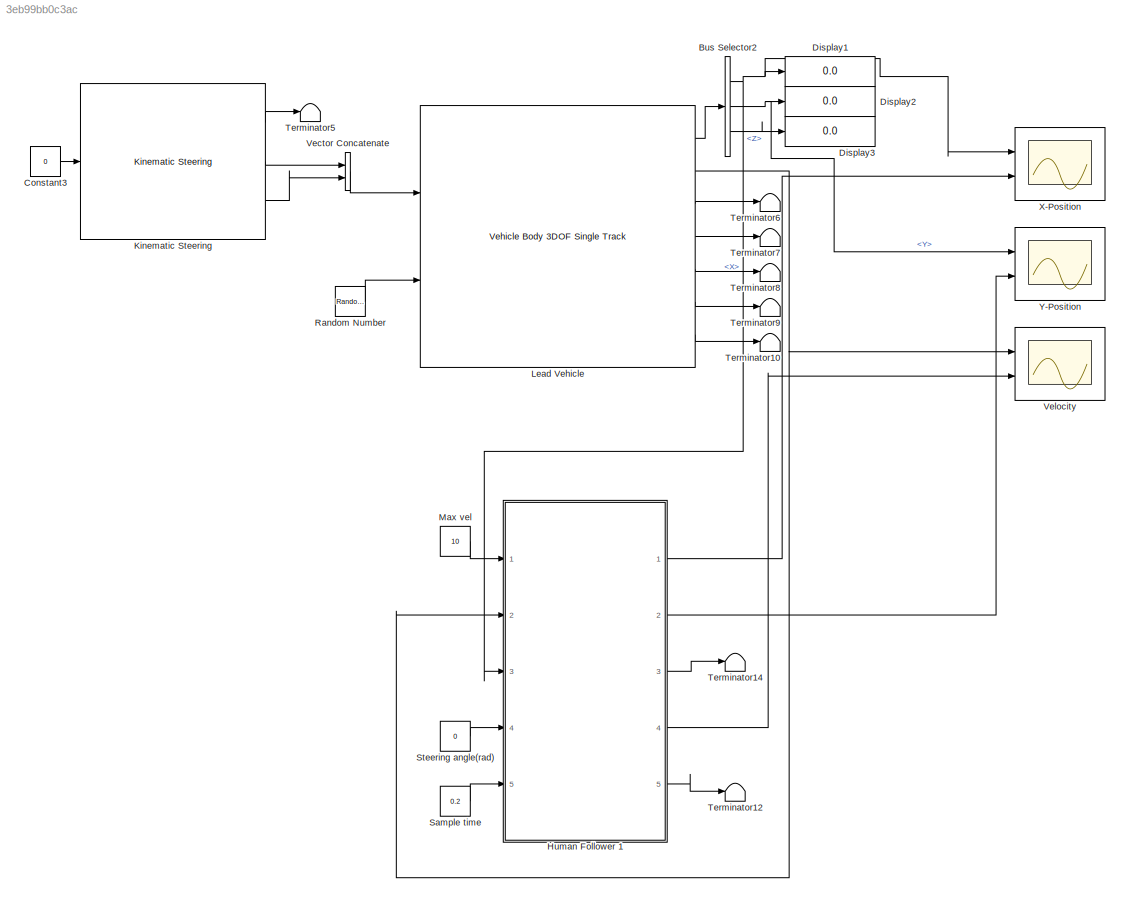
MODEL slx_3eb99bb0c3ac
KIND model
CONFIG AbsTol = auto
CONFIG EnableMultiTasking = off
CONFIG FixedStep = auto
CONFIG MaxStep = auto
CONFIG MinStep = auto
CONFIG RelTol = 1e-3
CONFIG SampleTimeConstraint = Unconstrained
CONFIG Solver = VariableStepAuto
CONFIG SolverName = VariableStepAuto
CONFIG StartTime = 0.0
CONFIG StopTime = 20
BLOCK [BusSelector] Bus Selector2
  OutputAsBus = off
  OutputSignals = InertFrm.Geom.Disp.X,InertFrm.Geom.Disp.Y,InertFrm.Geom.Disp.Z
  Ports = [1, 3]
BLOCK [Constant] Constant3
  Value = 0
BLOCK [Display] Display1
  Decimation = 1
  Ports = [1]
BLOCK [Display] Display2
  Decimation = 1
  Ports = [1]
BLOCK [Display] Display3
  Decimation = 1
  Ports = [1]
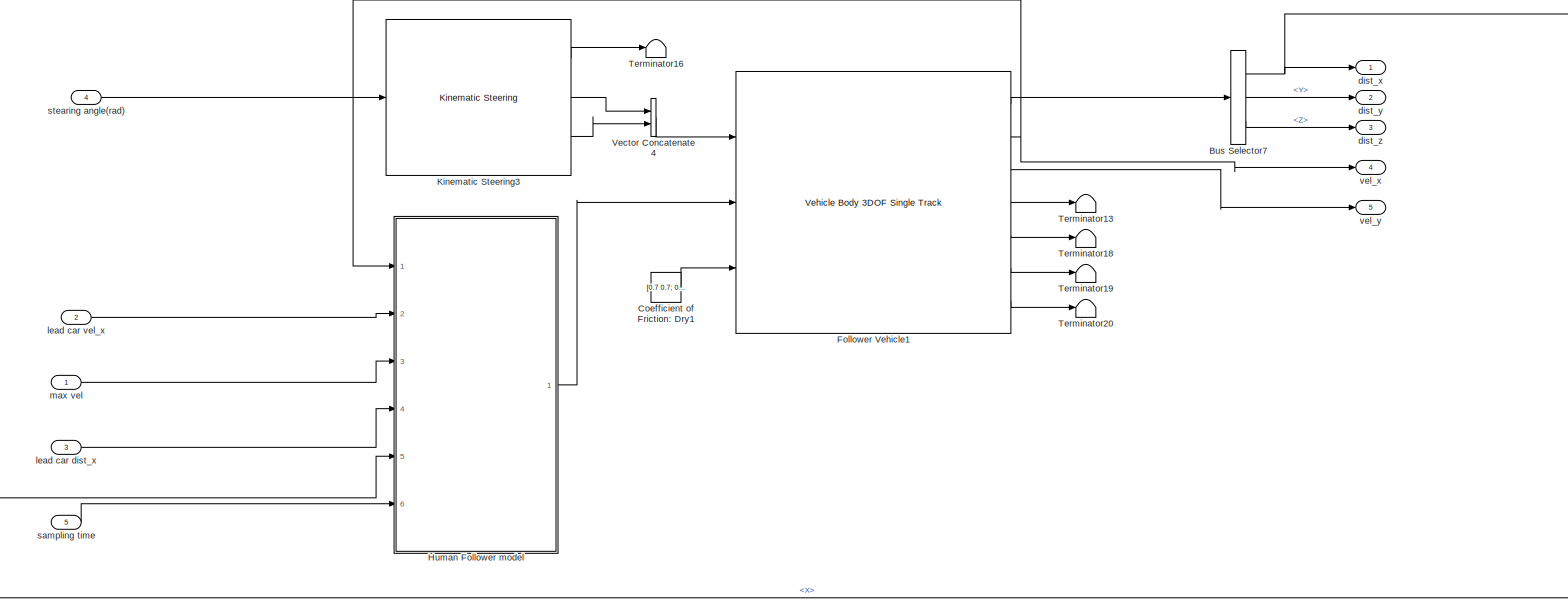
[diagram: Human Follower 1 - part 1/1, most of the canvas]
BLOCK [SubSystem] Human Follower 1
  Ports = [5, 5]
  RequestExecContextInheritance = off
BLOCK [BusSelector] Human Follower 1/Bus Selector7
  OutputAsBus = off
  OutputSignals = InertFrm.Cg.Disp.X,InertFrm.Cg.Disp.Y,InertFrm.Cg.Disp.Z
  Ports = [1, 3]
BLOCK [Constant] Human Follower 1/Coefficient of Friction: Dry1
  Value = [0.7 0.7; 0.7 0.7]
BLOCK [Reference] Human Follower 1/Follower Vehicle1  REF=autolibshared/Vehicle Body 3DOF Single Track
  Ports = [3, 7]
  SourceBlock = autolibshared/Vehicle Body 3DOF Single Track
  SourceProductBaseCode = PW
  SourceProductName = Powertrain Blockset
  SourceType = Vehicle Body 3DOF Lateral
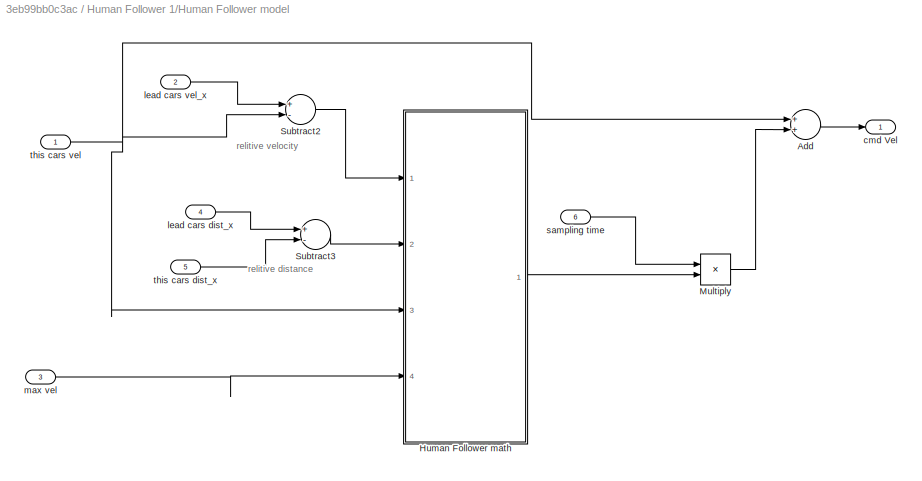
BLOCK [SubSystem] Human Follower 1/Human Follower model
  Ports = [6, 1]
  RequestExecContextInheritance = off
BLOCK [Sum] Human Follower 1/Human Follower model/Add
  InputSameDT = off
  OutDataTypeStr = Inherit: Inherit via internal rule
  Ports = [2, 1]
  SaturateOnIntegerOverflow = off
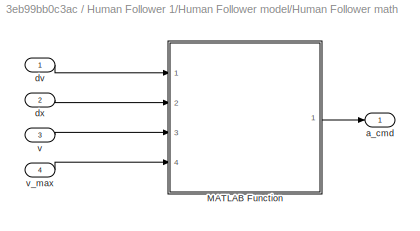
BLOCK [SubSystem] Human Follower 1/Human Follower model/Human Follower math
  Ports = [4, 1]
  RequestExecContextInheritance = off
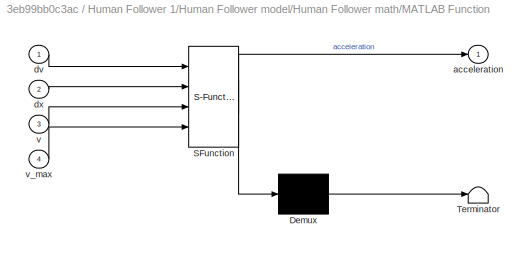
BLOCK [SubSystem] Human Follower 1/Human Follower model/Human Follower math/MATLAB Function
  ErrorFcn = Stateflow.Translate.translate
  PermitHierarchicalResolution = ExplicitOnly
  Ports = [4, 1]
  RequestExecContextInheritance = off
  SFBlockType = MATLAB Function
  TreatAsAtomicUnit = on
BLOCK [Demux] Human Follower 1/Human Follower model/Human Follower math/MATLAB Function/ Demux 
  Outputs = 1
  Ports = [1, 1]
BLOCK [S-Function] Human Follower 1/Human Follower model/Human Follower math/MATLAB Function/ SFunction 
  EnableBusSupport = on
  FunctionName = sf_sfun
  PortCounts = [4 2]
  Ports = [4, 2]
  SFcnIsStateOwnerBlock = off
  SFunctionDeploymentMode = off
  Tag = Stateflow S-Function carPlant_GeHumanFollower 5
BLOCK [Terminator] Human Follower 1/Human Follower model/Human Follower math/MATLAB Function/ Terminator 
BLOCK [Outport] Human Follower 1/Human Follower model/Human Follower math/MATLAB Function/acceleration
  IconDisplay = Port number
BLOCK [Inport] Human Follower 1/Human Follower model/Human Follower math/MATLAB Function/dv
  IconDisplay = Port number
BLOCK [Inport] Human Follower 1/Human Follower model/Human Follower math/MATLAB Function/dx
  IconDisplay = Port number
  Port = 2
BLOCK [Inport] Human Follower 1/Human Follower model/Human Follower math/MATLAB Function/v
  IconDisplay = Port number
  Port = 3
BLOCK [Inport] Human Follower 1/Human Follower model/Human Follower math/MATLAB Function/v_max
  IconDisplay = Port number
  Port = 4
BLOCK [Outport] Human Follower 1/Human Follower model/Human Follower math/a_cmd
  IconDisplay = Port number
BLOCK [Inport] Human Follower 1/Human Follower model/Human Follower math/dv
  IconDisplay = Port number
BLOCK [Inport] Human Follower 1/Human Follower model/Human Follower math/dx
  IconDisplay = Port number
  Port = 2
BLOCK [Inport] Human Follower 1/Human Follower model/Human Follower math/v
  IconDisplay = Port number
  Port = 3
BLOCK [Inport] Human Follower 1/Human Follower model/Human Follower math/v_max
  IconDisplay = Port number
  Port = 4
BLOCK [Product] Human Follower 1/Human Follower model/Multiply
  InputSameDT = off
  OutDataTypeStr = Inherit: Inherit via internal rule
  Ports = [2, 1]
  RndMeth = Floor
  SaturateOnIntegerOverflow = off
BLOCK [Sum] Human Follower 1/Human Follower model/Subtract2
  InputSameDT = off
  Inputs = +-
  OutDataTypeStr = Inherit: Inherit via internal rule
  Ports = [2, 1]
  SaturateOnIntegerOverflow = off
BLOCK [Sum] Human Follower 1/Human Follower model/Subtract3
  InputSameDT = off
  Inputs = +-
  OutDataTypeStr = Inherit: Inherit via internal rule
  Ports = [2, 1]
  SaturateOnIntegerOverflow = off
BLOCK [Outport] Human Follower 1/Human Follower model/cmd Vel
  IconDisplay = Port number
BLOCK [Inport] Human Follower 1/Human Follower model/lead cars dist_x
  IconDisplay = Port number
  Port = 4
BLOCK [Inport] Human Follower 1/Human Follower model/lead cars vel_x
  IconDisplay = Port number
  Port = 2
BLOCK [Inport] Human Follower 1/Human Follower model/max vel
  IconDisplay = Port number
  Port = 3
BLOCK [Inport] Human Follower 1/Human Follower model/sampling time
  IconDisplay = Port number
  Port = 6
BLOCK [Inport] Human Follower 1/Human Follower model/this cars dist_x
  IconDisplay = Port number
  Port = 5
BLOCK [Inport] Human Follower 1/Human Follower model/this cars vel
  IconDisplay = Port number
BLOCK [Reference] Human Follower 1/Kinematic Steering3  REF=vehdynlibsteering/Kinematic Steering
  Ports = [1, 3]
  SourceBlock = vehdynlibsteering/Kinematic Steering
  SourceProductBaseCode = VE
  SourceProductName = Vehicle Dynamics Blockset
  SourceType = Kinematic Steering
BLOCK [Terminator] Human Follower 1/Terminator13
BLOCK [Terminator] Human Follower 1/Terminator16
BLOCK [Terminator] Human Follower 1/Terminator18
BLOCK [Terminator] Human Follower 1/Terminator19
BLOCK [Terminator] Human Follower 1/Terminator20
BLOCK [Concatenate] Human Follower 1/Vector Concatenate4
  Ports = [2, 1]
BLOCK [Outport] Human Follower 1/dist_x
  IconDisplay = Port number
BLOCK [Outport] Human Follower 1/dist_y
  IconDisplay = Port number
  Port = 2
BLOCK [Outport] Human Follower 1/dist_z
  IconDisplay = Port number
  Port = 3
BLOCK [Inport] Human Follower 1/lead car dist_x
  IconDisplay = Port number
  Port = 3
BLOCK [Inport] Human Follower 1/lead car vel_x
  IconDisplay = Port number
  Port = 2
BLOCK [Inport] Human Follower 1/max vel
  IconDisplay = Port number
BLOCK [Inport] Human Follower 1/sampling time
  IconDisplay = Port number
  Port = 5
BLOCK [Inport] Human Follower 1/stearing angle(rad)
  IconDisplay = Port number
  Port = 4
BLOCK [Outport] Human Follower 1/vel_x
  IconDisplay = Port number
  Port = 4
BLOCK [Outport] Human Follower 1/vel_y
  IconDisplay = Port number
  Port = 5
BLOCK [Reference] Kinematic Steering  REF=vehdynlibsteering/Kinematic Steering
  Ports = [1, 3]
  SourceBlock = vehdynlibsteering/Kinematic Steering
  SourceProductBaseCode = VE
  SourceProductName = Vehicle Dynamics Blockset
  SourceType = Kinematic Steering
BLOCK [Reference] Lead Vehicle  REF=autolibshared/Vehicle Body 3DOF Single Track
  Ports = [2, 7]
  SourceBlock = autolibshared/Vehicle Body 3DOF Single Track
  SourceProductBaseCode = PW
  SourceProductName = Powertrain Blockset
  SourceType = Vehicle Body 3DOF Lateral
BLOCK [Constant] Max vel
  Value = 10
BLOCK [RandomNumber] Random Number
  Mean = 3
  SampleTime = 0.1
  Variance = 3
BLOCK [Constant] Sample time
  Value = 0.2
BLOCK [Constant] Steering angle(rad)
  Value = 0
BLOCK [Terminator] Terminator10
BLOCK [Terminator] Terminator12
BLOCK [Terminator] Terminator14
BLOCK [Terminator] Terminator5
BLOCK [Terminator] Terminator6
BLOCK [Terminator] Terminator7
BLOCK [Terminator] Terminator8
BLOCK [Terminator] Terminator9
BLOCK [Concatenate] Vector Concatenate
  Ports = [2, 1]
BLOCK [Scope] Velocity
  Floating = off
  NumInputPorts = 2
  Ports = [2]
  ScopeSpecificationString = Simulink.scopes.TimeScopeBlockCfg('CurrentConfiguration', extmgr.ConfigurationSet(extmgr.Configuration('Core','General UI',true),extmgr.Configuration('Core','Source UI',true),extmgr.Configuration('Sources','WiredSimulink',true,'DataLoggingVariableName','leaderRandom_GeHumanFollower_vel','DataLogging',true,'DataLoggingSaveFormat','StructureWithTime'),extmgr.Configuration('Visuals','Time Domain',tru...<+1508ch>
BLOCK [Scope] X-Position
  Floating = off
  NumInputPorts = 2
  Ports = [2]
  ScopeSpecificationString = Simulink.scopes.TimeScopeBlockCfg('CurrentConfiguration', extmgr.ConfigurationSet(extmgr.Configuration('Core','General UI',true),extmgr.Configuration('Core','Source UI',true),extmgr.Configuration('Sources','WiredSimulink',true,'DataLoggingVariableName','leaderRandom_GeHumanFollower_xpos','DataLogging',true,'DataLoggingSaveFormat','StructureWithTime'),extmgr.Configuration('Visuals','Time Domain',tr...<+1502ch>
BLOCK [Scope] Y-Position
  Floating = off
  NumInputPorts = 2
  Ports = [2]
  ScopeSpecificationString = Simulink.scopes.TimeScopeBlockCfg('CurrentConfiguration', extmgr.ConfigurationSet(extmgr.Configuration('Core','General UI',true),extmgr.Configuration('Core','Source UI',true),extmgr.Configuration('Sources','WiredSimulink',true,'DataLoggingVariableName','leaderRandom_GeHumanFollower_ypos','DataLoggingSaveFormat','StructureWithTime','DataLogging',true),extmgr.Configuration('Visuals','Time Domain',tr...<+1498ch>
ANNOTATION Human Follower 1/Human Follower model: relitive distance
ANNOTATION Human Follower 1/Human Follower model: relitive velocity
NET Bus Selector2:1 -> Display1:1, Human Follower 1:3, X-Position:1
NET Bus Selector2:2 -> Display2:1, Y-Position:1
LINE Bus Selector2:3 -> Display3:1
LINE Constant3:1 -> Kinematic Steering:1
NET Human Follower 1/Bus Selector7:1 -> Human Follower 1/Human Follower model:5, Human Follower 1/dist_x:1
LINE Human Follower 1/Bus Selector7:2 -> Human Follower 1/dist_y:1
LINE Human Follower 1/Bus Selector7:3 -> Human Follower 1/dist_z:1
LINE Human Follower 1/Coefficient of Friction: Dry1:1 -> Human Follower 1/Follower Vehicle1:3
LINE Human Follower 1/Follower Vehicle1:1 -> Human Follower 1/Bus Selector7:1
NET Human Follower 1/Follower Vehicle1:2 -> Human Follower 1/Human Follower model:1, Human Follower 1/vel_x:1
LINE Human Follower 1/Follower Vehicle1:3 -> Human Follower 1/vel_y:1
LINE Human Follower 1/Follower Vehicle1:4 -> Human Follower 1/Terminator13:1
LINE Human Follower 1/Follower Vehicle1:5 -> Human Follower 1/Terminator18:1
LINE Human Follower 1/Follower Vehicle1:6 -> Human Follower 1/Terminator19:1
LINE Human Follower 1/Follower Vehicle1:7 -> Human Follower 1/Terminator20:1
LINE Human Follower 1/Human Follower model/Add:1 -> Human Follower 1/Human Follower model/cmd Vel:1
LINE Human Follower 1/Human Follower model/Human Follower math/MATLAB Function:1 -> Human Follower 1/Human Follower model/Human Follower math/a_cmd:1
LINE Human Follower 1/Human Follower model/Human Follower math/dv:1 -> Human Follower 1/Human Follower model/Human Follower math/MATLAB Function:1
LINE Human Follower 1/Human Follower model/Human Follower math/dx:1 -> Human Follower 1/Human Follower model/Human Follower math/MATLAB Function:2
LINE Human Follower 1/Human Follower model/Human Follower math/v:1 -> Human Follower 1/Human Follower model/Human Follower math/MATLAB Function:3
LINE Human Follower 1/Human Follower model/Human Follower math/v_max:1 -> Human Follower 1/Human Follower model/Human Follower math/MATLAB Function:4
LINE Human Follower 1/Human Follower model/Human Follower math:1 -> Human Follower 1/Human Follower model/Multiply:2
LINE Human Follower 1/Human Follower model/Multiply:1 -> Human Follower 1/Human Follower model/Add:2
LINE Human Follower 1/Human Follower model/Subtract2:1 -> Human Follower 1/Human Follower model/Human Follower math:1
LINE Human Follower 1/Human Follower model/Subtract3:1 -> Human Follower 1/Human Follower model/Human Follower math:2
LINE Human Follower 1/Human Follower model/lead cars dist_x:1 -> Human Follower 1/Human Follower model/Subtract3:1
LINE Human Follower 1/Human Follower model/lead cars vel_x:1 -> Human Follower 1/Human Follower model/Subtract2:1
LINE Human Follower 1/Human Follower model/max vel:1 -> Human Follower 1/Human Follower model/Human Follower math:4
LINE Human Follower 1/Human Follower model/sampling time:1 -> Human Follower 1/Human Follower model/Multiply:1
LINE Human Follower 1/Human Follower model/this cars dist_x:1 -> Human Follower 1/Human Follower model/Subtract3:2
NET Human Follower 1/Human Follower model/this cars vel:1 -> Human Follower 1/Human Follower model/Add:1, Human Follower 1/Human Follower model/Human Follower math:3, Human Follower 1/Human Follower model/Subtract2:2
LINE Human Follower 1/Human Follower model:1 -> Human Follower 1/Follower Vehicle1:2
LINE Human Follower 1/Kinematic Steering3:1 -> Human Follower 1/Terminator16:1
LINE Human Follower 1/Kinematic Steering3:2 -> Human Follower 1/Vector Concatenate4:1
LINE Human Follower 1/Kinematic Steering3:3 -> Human Follower 1/Vector Concatenate4:2
LINE Human Follower 1/Vector Concatenate4:1 -> Human Follower 1/Follower Vehicle1:1
LINE Human Follower 1/lead car dist_x:1 -> Human Follower 1/Human Follower model:4
LINE Human Follower 1/lead car vel_x:1 -> Human Follower 1/Human Follower model:2
LINE Human Follower 1/max vel:1 -> Human Follower 1/Human Follower model:3
LINE Human Follower 1/sampling time:1 -> Human Follower 1/Human Follower model:6
LINE Human Follower 1/stearing angle(rad):1 -> Human Follower 1/Kinematic Steering3:1
LINE Human Follower 1:1 -> X-Position:2
LINE Human Follower 1:2 -> Y-Position:2
LINE Human Follower 1:3 -> Terminator14:1
LINE Human Follower 1:4 -> Velocity:2
LINE Human Follower 1:5 -> Terminator12:1
LINE Kinematic Steering:1 -> Terminator5:1
LINE Kinematic Steering:2 -> Vector Concatenate:1
LINE Kinematic Steering:3 -> Vector Concatenate:2
LINE Lead Vehicle:1 -> Bus Selector2:1
NET Lead Vehicle:2 -> Human Follower 1:2, Velocity:1
LINE Lead Vehicle:3 -> Terminator6:1
LINE Lead Vehicle:4 -> Terminator7:1
LINE Lead Vehicle:5 -> Terminator8:1
LINE Lead Vehicle:6 -> Terminator9:1
LINE Lead Vehicle:7 -> Terminator10:1
LINE Max vel:1 -> Human Follower 1:1
LINE Random Number:1 -> Lead Vehicle:2
LINE Sample time:1 -> Human Follower 1:5
LINE Steering angle(rad):1 -> Human Follower 1:4
LINE Vector Concatenate:1 -> Lead Vehicle:1
note: NET lines group one-source signal fan-out (src -> all destinations, sorted); 1:1 wires keep LINE
CHART Human Follower 1/Human Follower model/Human Follower math/MATLAB Function states=1 transitions=1
  STATE_LABEL 'eML_blk_kernel()'
  STATE_LABEL 'SCRIPT:\nfunction acceleration = fcn(dv, dx, v, v_max)\n\nif dx <= 10\n    V = 0;\nelseif dx <= 35\n    V = dx - 10;\nelse\n    V = 30;\nend\n\nif dv + v <= v_max\n    w = v + dv;\nelse\n    w = v_max;\nend\n\nacceleration = 0.1*(V-v) + 0.5*(w-v);\n'
